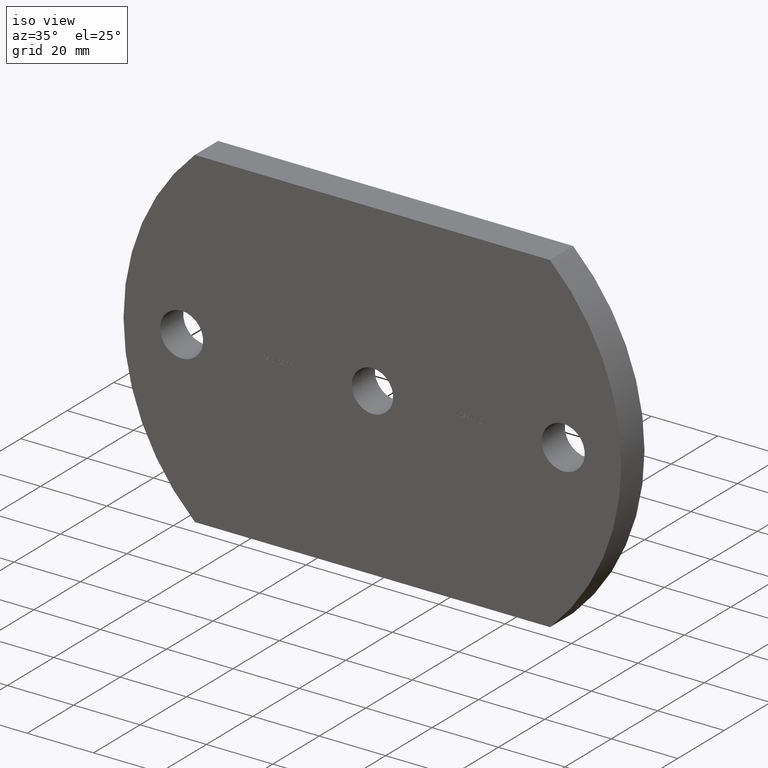
[diagram: clean part render]
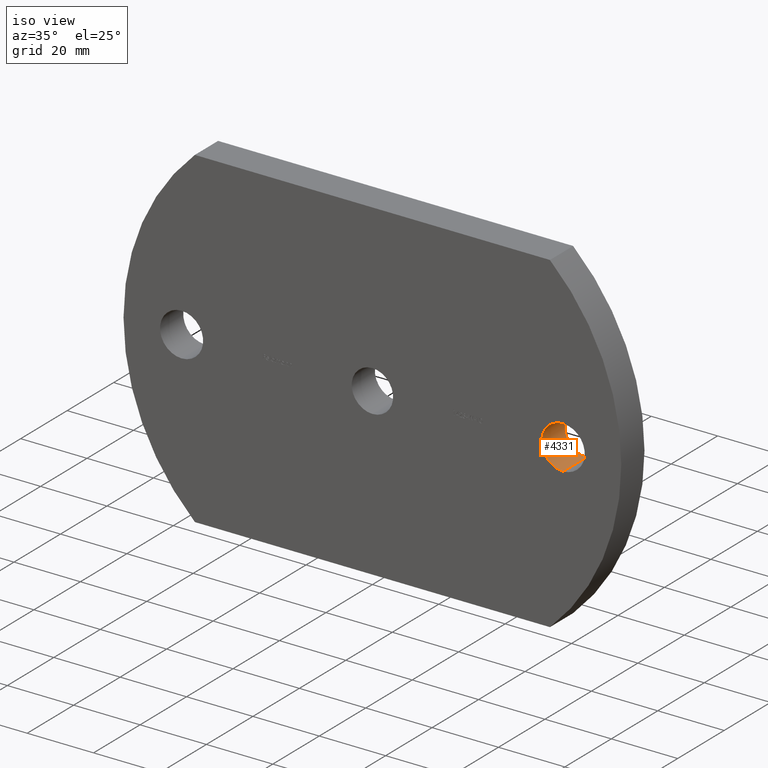
[diagram: same view with one face highlighted and labeled with its STEP entity id]
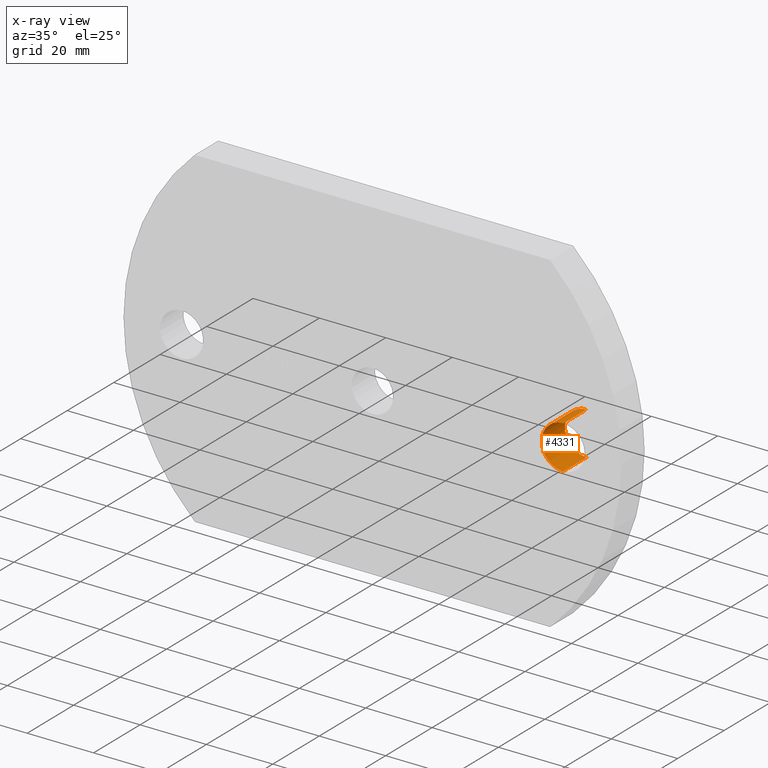
[diagram: x-ray of the same camera — body ghosted, the highlighted face saturated]
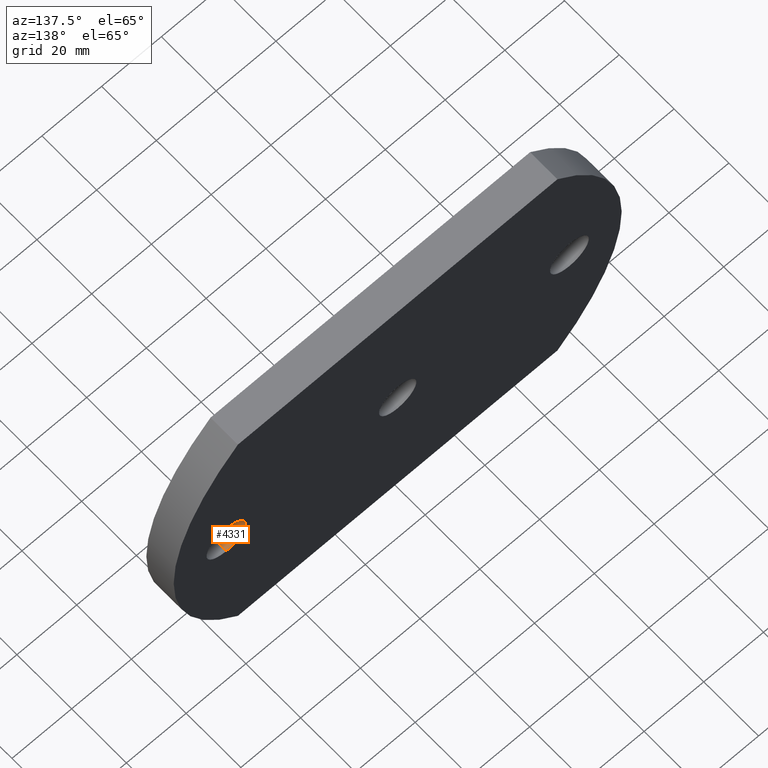
[diagram: same view with one face highlighted and labeled with its STEP entity id]
A machine part, iso view. The second image highlights one B-rep face of the part: STEP entity #4331.
The next image is the same camera in x-ray: the body ghosted, the highlighted face saturated — about 0% of this face is hidden behind the body in this view.
A second angle (auxiliary view) of the same face is appended — the face is thin or edge-on in the first view.
In plain terms, the highlighted cylindrical surface (edge-blend (fillet) strip) has radius 6.5 mm, axis along (-0, 1, -0).
Its self-contained STEP definition (entity closure, byte-faithful):
#888 = VERTEX_POINT ( 'NONE', #1397 ) ;
#1131 = DIRECTION ( 'NONE',  ( -0.0000000000000000000, 1.000000000000000000, -0.0000000000000000000 ) ) ;
#1289 = CIRCLE ( 'NONE', #6177, 6.499999999999994700 ) ;
#1327 = DIRECTION ( 'NONE',  ( -0.0000000000000000000, 1.000000000000000000, -0.0000000000000000000 ) ) ;
#1397 = CARTESIAN_POINT ( 'NONE',  ( 57.50000000000000000, 10.00000000000000000, -6.499999999999994700 ) ) ;
#1636 = VERTEX_POINT ( 'NONE', #9532 ) ;
#1903 = CARTESIAN_POINT ( 'NONE',  ( 57.50000000000000000, 0.0000000000000000000, 0.0000000000000000000 ) ) ;
#1952 = VERTEX_POINT ( 'NONE', #9445 ) ;
#2529 = AXIS2_PLACEMENT_3D ( 'NONE', #1903, #4488, #9486 ) ;
#3193 = EDGE_CURVE ( 'NONE', #1952, #1636, #3355, .T. ) ;
#3205 = LINE ( 'NONE', #5274, #9686 ) ;
#3355 = LINE ( 'NONE', #8039, #4168 ) ;
#3446 = ORIENTED_EDGE ( 'NONE', *, *, #6026, .F. ) ;
#3693 = ORIENTED_EDGE ( 'NONE', *, *, #8112, .T. ) ;
#3894 = ORIENTED_EDGE ( 'NONE', *, *, #3193, .F. ) ;
#4079 = CARTESIAN_POINT ( 'NONE',  ( 57.50000000000000000, 0.0000000000000000000, 0.0000000000000000000 ) ) ;
#4168 = VECTOR ( 'NONE', #1327, 1000.000000000000000 ) ;
#4331 = ADVANCED_FACE ( 'NONE', ( #4708 ), #10748, .F. ) ;
#4390 = ORIENTED_EDGE ( 'NONE', *, *, #9511, .T. ) ;
#4488 = DIRECTION ( 'NONE',  ( 0.0000000000000000000, 1.000000000000000000, 0.0000000000000000000 ) ) ;
#4708 = FACE_OUTER_BOUND ( 'NONE', #4781, .T. ) ;
#4781 = EDGE_LOOP ( 'NONE', ( #3446, #4390, #3693, #3894 ) ) ;
#5274 = CARTESIAN_POINT ( 'NONE',  ( 57.50000000000000000, 0.0000000000000000000, -6.499999999999994700 ) ) ;
#5436 = CARTESIAN_POINT ( 'NONE',  ( 57.50000000000000000, 0.0000000000000000000, -6.499999999999994700 ) ) ;
#5557 = DIRECTION ( 'NONE',  ( 0.0000000000000000000, 1.000000000000000000, 0.0000000000000000000 ) ) ;
#6026 = EDGE_CURVE ( 'NONE', #7547, #1952, #8248, .T. ) ;
#6177 = AXIS2_PLACEMENT_3D ( 'NONE', #9783, #5557, #10556 ) ;
#7459 = DIRECTION ( 'NONE',  ( 0.0000000000000000000, 0.0000000000000000000, 1.000000000000000000 ) ) ;
#7547 = VERTEX_POINT ( 'NONE', #5436 ) ;
#8039 = CARTESIAN_POINT ( 'NONE',  ( 57.50000000000000000, 0.0000000000000000000, 6.499999999999994700 ) ) ;
#8112 = EDGE_CURVE ( 'NONE', #888, #1636, #1289, .T. ) ;
#8248 = CIRCLE ( 'NONE', #2529, 6.499999999999994700 ) ;
#9445 = CARTESIAN_POINT ( 'NONE',  ( 57.50000000000000000, 0.0000000000000000000, 6.499999999999994700 ) ) ;
#9486 = DIRECTION ( 'NONE',  ( 0.0000000000000000000, 0.0000000000000000000, 1.000000000000000000 ) ) ;
#9511 = EDGE_CURVE ( 'NONE', #7547, #888, #3205, .T. ) ;
#9532 = CARTESIAN_POINT ( 'NONE',  ( 57.50000000000000000, 10.00000000000000000, 6.499999999999994700 ) ) ;
#9686 = VECTOR ( 'NONE', #1131, 1000.000000000000000 ) ;
#9774 = AXIS2_PLACEMENT_3D ( 'NONE', #4079, #10800, #7459 ) ;
#9783 = CARTESIAN_POINT ( 'NONE',  ( 57.50000000000000000, 10.00000000000000000, 0.0000000000000000000 ) ) ;
#10556 = DIRECTION ( 'NONE',  ( 0.0000000000000000000, 0.0000000000000000000, 1.000000000000000000 ) ) ;
#10748 = CYLINDRICAL_SURFACE ( 'NONE', #9774, 6.499999999999994700 ) ;
#10800 = DIRECTION ( 'NONE',  ( -0.0000000000000000000, 1.000000000000000000, -0.0000000000000000000 ) ) ;